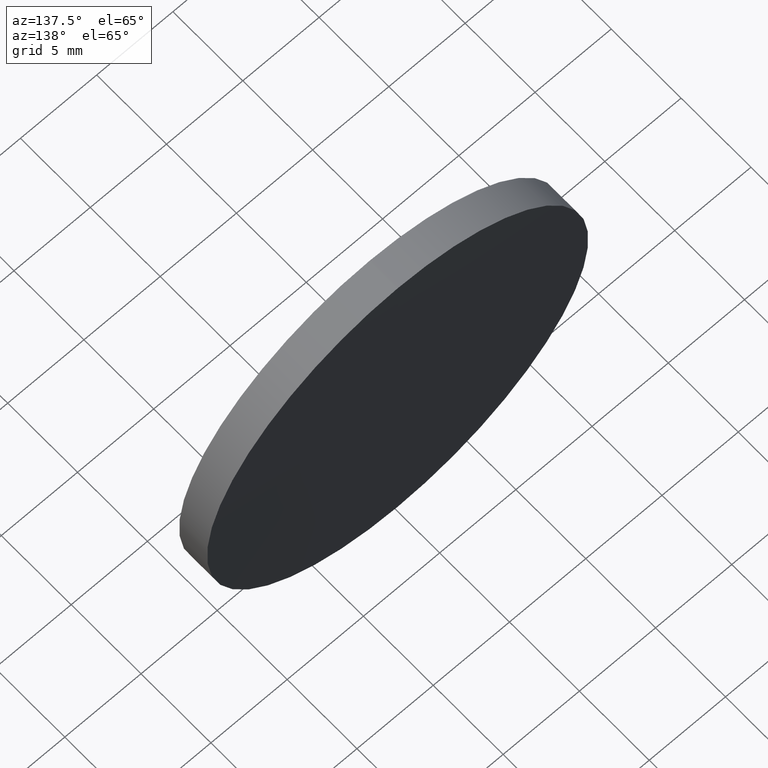
[diagram: clean part render]
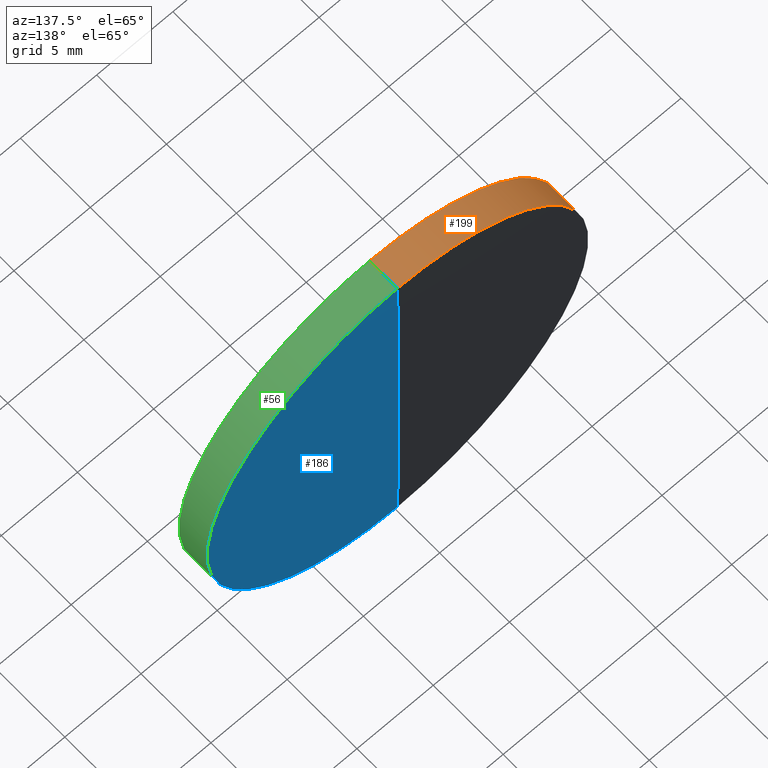
[diagram: same view with three faces highlighted in distinct colors, each labeled with its STEP entity id]
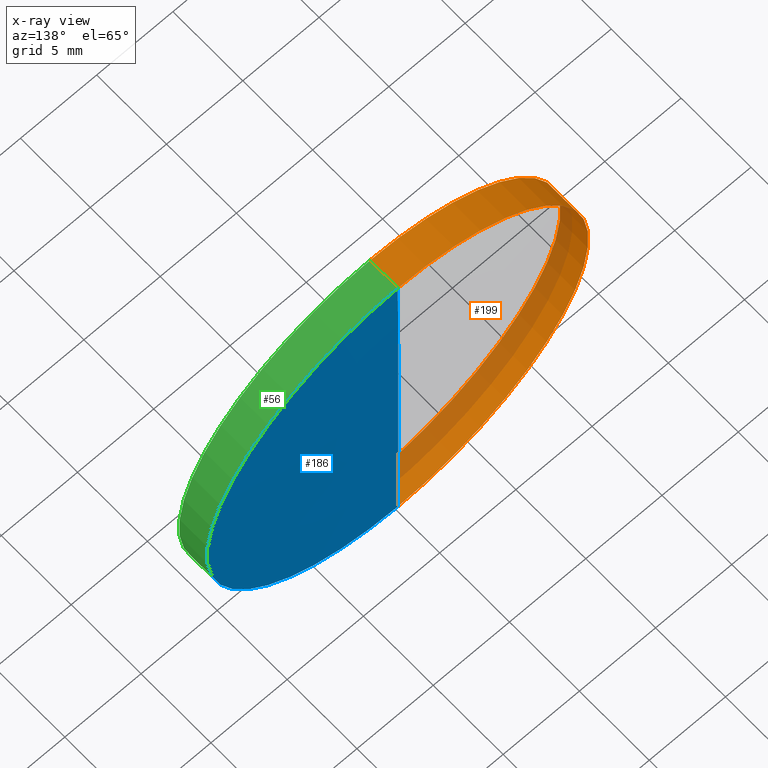
[diagram: x-ray of the same camera — body ghosted, the three highlighted faces saturated]
A machine part, auxiliary view with three faces highlighted in distinct colors.
The next image is the same camera in x-ray (body ghosted, the three faces saturated) — at least one of them is partly hidden behind the body in this view.
Their STEP definitions:

[orange] entity #199 — the highlighted cylindrical surface (partial cylindrical patch) has radius 12.5 mm, axis along (-0, 1, -0).
#2 = DIRECTION ( 'NONE',  ( 0.000000000000000000, 0.000000000000000000, 1.000000000000000000 ) ) ;
#5 = DIRECTION ( 'NONE',  ( 0.000000000000000000, 0.000000000000000000, 1.000000000000000000 ) ) ;
#8 = DIRECTION ( 'NONE',  ( -0.000000000000000000, 1.000000000000000000, -0.000000000000000000 ) ) ;
#11 = ORIENTED_EDGE ( 'NONE', *, *, #18, .F. ) ;
#18 = EDGE_CURVE ( 'NONE', #164, #179, #77, .T. ) ;
#22 = DIRECTION ( 'NONE',  ( -0.000000000000000000, 1.000000000000000000, -0.000000000000000000 ) ) ;
#23 = AXIS2_PLACEMENT_3D ( 'NONE', #130, #8, #69 ) ;
#32 = FACE_OUTER_BOUND ( 'NONE', #93, .T. ) ;
#33 = ORIENTED_EDGE ( 'NONE', *, *, #114, .T. ) ;
#48 = DIRECTION ( 'NONE',  ( -0.000000000000000000, 1.000000000000000000, -0.000000000000000000 ) ) ;
#62 = CARTESIAN_POINT ( 'NONE',  ( 0.000000000000000000, 2.040000000000000036, 0.000000000000000000 ) ) ;
#63 = CARTESIAN_POINT ( 'NONE',  ( 1.530808498934191521E-15, 2.040000000000000036, -12.50000000000000000 ) ) ;
#67 = CARTESIAN_POINT ( 'NONE',  ( 0.000000000000000000, 1.999999999999998224, 0.000000000000000000 ) ) ;
#69 = DIRECTION ( 'NONE',  ( 0.000000000000000000, 0.000000000000000000, 1.000000000000000000 ) ) ;
#70 = EDGE_CURVE ( 'NONE', #164, #111, #89, .T. ) ;
#77 = LINE ( 'NONE', #63, #160 ) ;
#80 = AXIS2_PLACEMENT_3D ( 'NONE', #62, #48, #2 ) ;
#89 = CIRCLE ( 'NONE', #23, 12.50000000000000000 ) ;
#90 = CYLINDRICAL_SURFACE ( 'NONE', #80, 12.50000000000000000 ) ;
#93 = EDGE_LOOP ( 'NONE', ( #11, #102, #33, #124 ) ) ;
#94 = LINE ( 'NONE', #159, #166 ) ;
#96 = CARTESIAN_POINT ( 'NONE',  ( 1.530808498934191521E-15, -1.734723475976807094E-15, -12.50000000000000000 ) ) ;
#102 = ORIENTED_EDGE ( 'NONE', *, *, #70, .T. ) ;
#107 = VERTEX_POINT ( 'NONE', #142 ) ;
#111 = VERTEX_POINT ( 'NONE', #118 ) ;
#114 = EDGE_CURVE ( 'NONE', #111, #107, #94, .T. ) ;
#118 = CARTESIAN_POINT ( 'NONE',  ( 0.000000000000000000, -1.734723475976807094E-15, 12.50000000000000000 ) ) ;
#122 = AXIS2_PLACEMENT_3D ( 'NONE', #67, #174, #5 ) ;
#124 = ORIENTED_EDGE ( 'NONE', *, *, #125, .F. ) ;
#125 = EDGE_CURVE ( 'NONE', #179, #107, #198, .T. ) ;
#130 = CARTESIAN_POINT ( 'NONE',  ( 0.000000000000000000, -1.734723475976807094E-15, 0.000000000000000000 ) ) ;
#142 = CARTESIAN_POINT ( 'NONE',  ( 0.000000000000000000, 2.000000000000000000, 12.49999999999528555 ) ) ;
#158 = CARTESIAN_POINT ( 'NONE',  ( 1.530808498933614470E-15, 2.000000000000000000, -12.49999999999528555 ) ) ;
#159 = CARTESIAN_POINT ( 'NONE',  ( 0.000000000000000000, 2.040000000000000036, 12.50000000000000000 ) ) ;
#160 = VECTOR ( 'NONE', #185, 1000.000000000000000 ) ;
#164 = VERTEX_POINT ( 'NONE', #96 ) ;
#166 = VECTOR ( 'NONE', #22, 1000.000000000000000 ) ;
#174 = DIRECTION ( 'NONE',  ( -0.000000000000000000, 1.000000000000000000, -0.000000000000000000 ) ) ;
#179 = VERTEX_POINT ( 'NONE', #158 ) ;
#185 = DIRECTION ( 'NONE',  ( -0.000000000000000000, 1.000000000000000000, -0.000000000000000000 ) ) ;
#198 = CIRCLE ( 'NONE', #122, 12.50000000000000000 ) ;
#199 = ADVANCED_FACE ( 'NONE', ( #32 ), #90, .T. ) ;

[blue] entity #186 — the highlighted toroidal blend (fillet) surface has major radius 2.9426 mm and minor (blend) radius 1033.6 mm.
#6 = CIRCLE ( 'NONE', #101, 1033.599999999999909 ) ;
#7 = CARTESIAN_POINT ( 'NONE',  ( 0.000000000000000000, -1031.555811405951317, 0.000000000000000000 ) ) ;
#19 = CARTESIAN_POINT ( 'NONE',  ( 0.000000000000000000, -1031.555811405951317, 2.942557403500804192 ) ) ;
#21 = FACE_OUTER_BOUND ( 'NONE', #75, .T. ) ;
#27 = TOROIDAL_SURFACE ( 'NONE', #87, 2.942557403500804192, 1033.599999999999909 ) ;
#31 = EDGE_CURVE ( 'NONE', #107, #179, #97, .T. ) ;
#36 = DIRECTION ( 'NONE',  ( 1.000000000000000000, 0.000000000000000000, 1.224646799147353207E-16 ) ) ;
#39 = ORIENTED_EDGE ( 'NONE', *, *, #31, .T. ) ;
#40 = AXIS2_PLACEMENT_3D ( 'NONE', #103, #91, #165 ) ;
#51 = DIRECTION ( 'NONE',  ( 0.000000000000000000, 0.000000000000000000, 1.000000000000000000 ) ) ;
#61 = ORIENTED_EDGE ( 'NONE', *, *, #138, .F. ) ;
#68 = AXIS2_PLACEMENT_3D ( 'NONE', #19, #193, #51 ) ;
#75 = EDGE_LOOP ( 'NONE', ( #39, #161, #61 ) ) ;
#82 = CARTESIAN_POINT ( 'NONE',  ( 0.000000000000000000, 2.040000000000000036, 0.000000000000000000 ) ) ;
#87 = AXIS2_PLACEMENT_3D ( 'NONE', #7, #167, #137 ) ;
#91 = DIRECTION ( 'NONE',  ( -0.000000000000000000, 1.000000000000000000, -0.000000000000000000 ) ) ;
#97 = CIRCLE ( 'NONE', #40, 12.50000000000000000 ) ;
#98 = VERTEX_POINT ( 'NONE', #82 ) ;
#101 = AXIS2_PLACEMENT_3D ( 'NONE', #192, #36, #171 ) ;
#103 = CARTESIAN_POINT ( 'NONE',  ( 0.000000000000000000, 1.999999999999998224, 0.000000000000000000 ) ) ;
#105 = CIRCLE ( 'NONE', #68, 1033.599999999999909 ) ;
#107 = VERTEX_POINT ( 'NONE', #142 ) ;
#137 = DIRECTION ( 'NONE',  ( 0.000000000000000000, 0.000000000000000000, 1.000000000000000000 ) ) ;
#138 = EDGE_CURVE ( 'NONE', #107, #98, #105, .T. ) ;
#142 = CARTESIAN_POINT ( 'NONE',  ( 0.000000000000000000, 2.000000000000000000, 12.49999999999528555 ) ) ;
#147 = EDGE_CURVE ( 'NONE', #179, #98, #6, .T. ) ;
#158 = CARTESIAN_POINT ( 'NONE',  ( 1.530808498933614470E-15, 2.000000000000000000, -12.49999999999528555 ) ) ;
#161 = ORIENTED_EDGE ( 'NONE', *, *, #147, .T. ) ;
#165 = DIRECTION ( 'NONE',  ( 0.000000000000000000, 0.000000000000000000, 1.000000000000000000 ) ) ;
#167 = DIRECTION ( 'NONE',  ( -0.000000000000000000, 1.000000000000000000, -0.000000000000000000 ) ) ;
#171 = DIRECTION ( 'NONE',  ( 1.224646799147353207E-16, 0.000000000000000000, -1.000000000000000000 ) ) ;
#179 = VERTEX_POINT ( 'NONE', #158 ) ;
#186 = ADVANCED_FACE ( 'NONE', ( #21 ), #27, .T. ) ;
#192 = CARTESIAN_POINT ( 'NONE',  ( 3.603593505504606522E-16, -1031.555811405951317, -2.942557403500804192 ) ) ;
#193 = DIRECTION ( 'NONE',  ( -1.000000000000000000, 0.000000000000000000, 0.000000000000000000 ) ) ;

[green] entity #56 — the highlighted cylindrical surface (partial cylindrical patch) has radius 12.5 mm, axis along (-0, 1, -0).
#18 = EDGE_CURVE ( 'NONE', #164, #179, #77, .T. ) ;
#22 = DIRECTION ( 'NONE',  ( -0.000000000000000000, 1.000000000000000000, -0.000000000000000000 ) ) ;
#24 = EDGE_LOOP ( 'NONE', ( #134, #42, #29, #44 ) ) ;
#29 = ORIENTED_EDGE ( 'NONE', *, *, #31, .F. ) ;
#31 = EDGE_CURVE ( 'NONE', #107, #179, #97, .T. ) ;
#40 = AXIS2_PLACEMENT_3D ( 'NONE', #103, #91, #165 ) ;
#42 = ORIENTED_EDGE ( 'NONE', *, *, #18, .T. ) ;
#44 = ORIENTED_EDGE ( 'NONE', *, *, #114, .F. ) ;
#50 = CARTESIAN_POINT ( 'NONE',  ( 0.000000000000000000, -1.734723475976807094E-15, 0.000000000000000000 ) ) ;
#53 = DIRECTION ( 'NONE',  ( -0.000000000000000000, 1.000000000000000000, -0.000000000000000000 ) ) ;
#55 = CARTESIAN_POINT ( 'NONE',  ( 0.000000000000000000, 2.040000000000000036, 0.000000000000000000 ) ) ;
#56 = ADVANCED_FACE ( 'NONE', ( #196 ), #145, .T. ) ;
#63 = CARTESIAN_POINT ( 'NONE',  ( 1.530808498934191521E-15, 2.040000000000000036, -12.50000000000000000 ) ) ;
#77 = LINE ( 'NONE', #63, #160 ) ;
#81 = AXIS2_PLACEMENT_3D ( 'NONE', #50, #170, #155 ) ;
#91 = DIRECTION ( 'NONE',  ( -0.000000000000000000, 1.000000000000000000, -0.000000000000000000 ) ) ;
#94 = LINE ( 'NONE', #159, #166 ) ;
#96 = CARTESIAN_POINT ( 'NONE',  ( 1.530808498934191521E-15, -1.734723475976807094E-15, -12.50000000000000000 ) ) ;
#97 = CIRCLE ( 'NONE', #40, 12.50000000000000000 ) ;
#103 = CARTESIAN_POINT ( 'NONE',  ( 0.000000000000000000, 1.999999999999998224, 0.000000000000000000 ) ) ;
#107 = VERTEX_POINT ( 'NONE', #142 ) ;
#111 = VERTEX_POINT ( 'NONE', #118 ) ;
#114 = EDGE_CURVE ( 'NONE', #111, #107, #94, .T. ) ;
#116 = EDGE_CURVE ( 'NONE', #111, #164, #141, .T. ) ;
#118 = CARTESIAN_POINT ( 'NONE',  ( 0.000000000000000000, -1.734723475976807094E-15, 12.50000000000000000 ) ) ;
#134 = ORIENTED_EDGE ( 'NONE', *, *, #116, .T. ) ;
#141 = CIRCLE ( 'NONE', #81, 12.50000000000000000 ) ;
#142 = CARTESIAN_POINT ( 'NONE',  ( 0.000000000000000000, 2.000000000000000000, 12.49999999999528555 ) ) ;
#145 = CYLINDRICAL_SURFACE ( 'NONE', #175, 12.50000000000000000 ) ;
#155 = DIRECTION ( 'NONE',  ( 0.000000000000000000, 0.000000000000000000, 1.000000000000000000 ) ) ;
#156 = DIRECTION ( 'NONE',  ( 0.000000000000000000, 0.000000000000000000, 1.000000000000000000 ) ) ;
#158 = CARTESIAN_POINT ( 'NONE',  ( 1.530808498933614470E-15, 2.000000000000000000, -12.49999999999528555 ) ) ;
#159 = CARTESIAN_POINT ( 'NONE',  ( 0.000000000000000000, 2.040000000000000036, 12.50000000000000000 ) ) ;
#160 = VECTOR ( 'NONE', #185, 1000.000000000000000 ) ;
#164 = VERTEX_POINT ( 'NONE', #96 ) ;
#165 = DIRECTION ( 'NONE',  ( 0.000000000000000000, 0.000000000000000000, 1.000000000000000000 ) ) ;
#166 = VECTOR ( 'NONE', #22, 1000.000000000000000 ) ;
#170 = DIRECTION ( 'NONE',  ( -0.000000000000000000, 1.000000000000000000, -0.000000000000000000 ) ) ;
#175 = AXIS2_PLACEMENT_3D ( 'NONE', #55, #53, #156 ) ;
#179 = VERTEX_POINT ( 'NONE', #158 ) ;
#185 = DIRECTION ( 'NONE',  ( -0.000000000000000000, 1.000000000000000000, -0.000000000000000000 ) ) ;
#196 = FACE_OUTER_BOUND ( 'NONE', #24, .T. ) ;